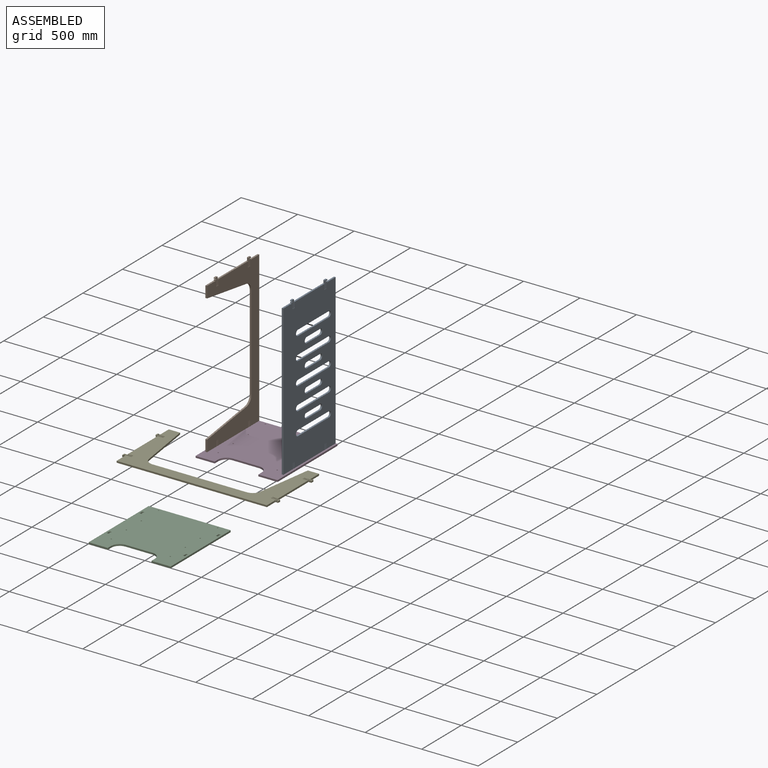
[diagram: assembled view]
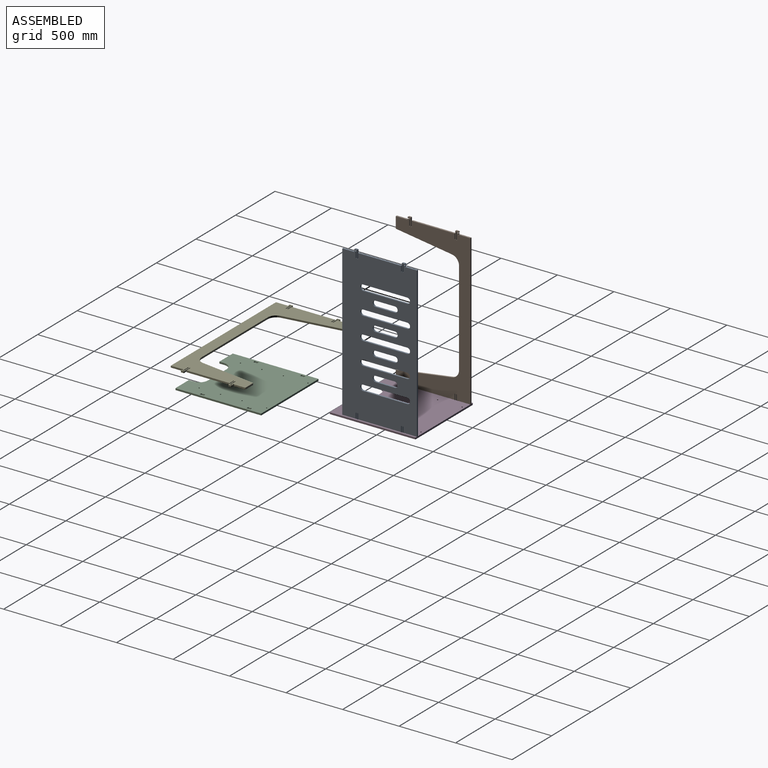
[diagram: assembled view, second angle]
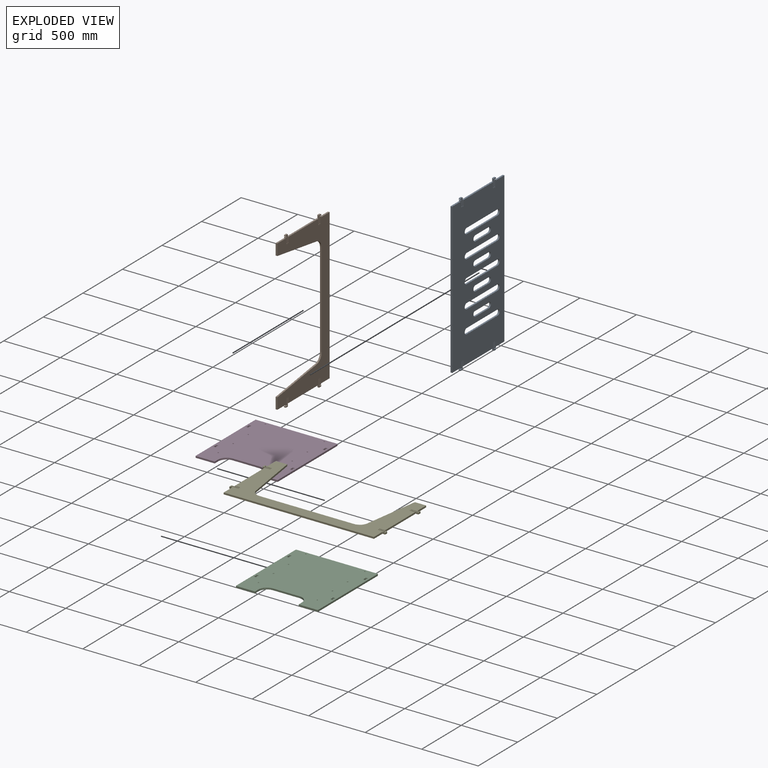
[diagram: exploded view]
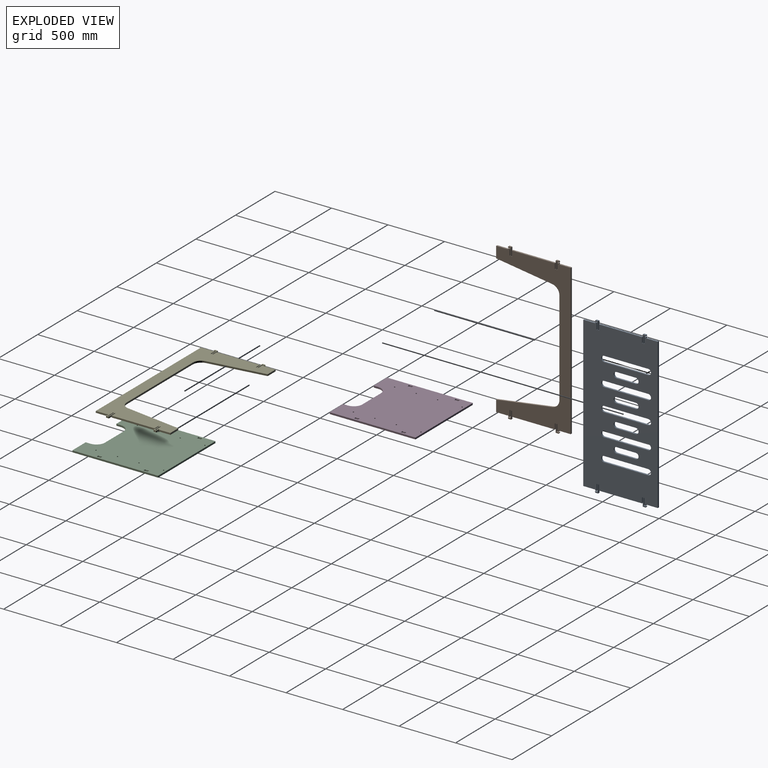
[diagram: exploded view, second angle]
ASSEMBLY  parts=5 mates=2
PART A: 130 faces, bbox 1380.2x660x14.8 mm
  f0: plane 14.8x7.86mm, normal (0,1,0), area 116.3mm2, adj f1,f21,f22,f23
  f1: plane 14.8x10mm, normal (-1,0,0), area 148mm2, adj f0,f2,f22,f23
  f2: cylinder r=3mm len=14.8mm, axis (0,0,-1), area 69.7mm2, adj f1,f3,f22,f23
  f3: plane 51x14.8mm, normal (0,-1,0), area 754.8mm2, adj f2,f4,f22,f23
  f4: cylinder r=3mm len=14.8mm, axis (0,0,-1), area 69.7mm2, adj f3,f5,f22,f23
  f5: plane 14.8x0.5mm, normal (-1,0,0), area 7.4mm2, adj f4,f6,f22,f23
  f6: cylinder r=3mm len=14.8mm, axis (0,0,-1), area 69.7mm2, adj f5,f7,f22,f23
  f7: plane 57.55x14.8mm, normal (0,1,0), area 851.8mm2, adj f6,f8,f22,f23
  f8: cylinder r=3mm len=14.8mm, axis (0,0,-1), area 69mm2, adj f7,f9,f22,f23
  f9: plane 18.55x14.8mm, normal (1,0.02,0), area 274.6mm2, adj f8,f10,f22,f23
  f10: cylinder r=0.5mm len=14.8mm, axis (0,0,-1), area 14.1mm2, adj f9,f11,f22,f23
  f11: plane 14.8x8.36mm, normal (-0.34,0.94,0), area 131.7mm2, adj f10,f12,f22,f23
  f12: cylinder r=2mm len=14.8mm, axis (0,0,-1), area 36.2mm2, adj f11,f13,f22,f23
  f13: plane 22.03x14.8mm, normal (-1,0,0), area 326.1mm2, adj f12,f14,f22,f23
  f14: cylinder r=3mm len=14.8mm, axis (0,0,-1), area 69.7mm2, adj f13,f15,f22,f23
  f15: plane 68.22x14.8mm, normal (0,-1,0), area 1009.7mm2, adj f14,f16,f22,f23
  f16: cylinder r=3mm len=14.8mm, axis (0,0,-1), area 69.7mm2, adj f15,f17,f22,f23
  f17: plane 14.8x0.5mm, normal (-1,0,0), area 7.4mm2, adj f16,f18,f22,f23
  f18: cylinder r=3mm len=14.8mm, axis (0,0,-1), area 69.7mm2, adj f17,f19,f22,f23
  f19: plane 46.14x14.8mm, normal (0,1,0), area 682.9mm2, adj f18,f20,f22,f23
  f20: plane 380x14.8mm, normal (-1,0,0), area 5624mm2, adj f19,f22,f23,f27
  f21: cylinder r=3mm len=14.8mm, axis (0,0,-1), area 139.5mm2, adj f0,f22,f23,f51
  f22: plane 1380.17x660mm, normal (0,0,1), area 727574.9mm2, adj f0,f1,f2,f3,f4,f5,f6,f7
  f23: plane 1380.17x660mm, normal (0,0,-1), area 727574.9mm2, adj f0,f1,f2,f3,f4,f5,f6,f7
  f24: plane 14.8x10mm, normal (-1,0,0), area 148mm2, adj f22,f23,f25,f44
  f25: plane 14.8x7.86mm, normal (0,-1,0), area 116.3mm2, adj f22,f23,f24,f26
  f26: cylinder r=3mm len=14.8mm, axis (0,0,-1), area 139.5mm2, adj f22,f23,f25,f45
  f27: plane 46.14x14.8mm, normal (0,-1,0), area 682.9mm2, adj f20,f22,f23,f28
  f28: cylinder r=3mm len=14.8mm, axis (0,0,-1), area 69.7mm2, adj f22,f23,f27,f29
  f29: plane 14.8x0.5mm, normal (-1,0,0), area 7.4mm2, adj f22,f23,f28,f30
  f30: cylinder r=3mm len=14.8mm, axis (0,0,-1), area 69.7mm2, adj f22,f23,f29,f31
  f31: plane 68.22x14.8mm, normal (0,1,0), area 1009.7mm2, adj f22,f23,f30,f32
  f32: cylinder r=3mm len=14.8mm, axis (0,0,-1), area 69.7mm2, adj f22,f23,f31,f33
  f33: plane 22.03x14.8mm, normal (-1,0,0), area 326.1mm2, adj f22,f23,f32,f34
  f34: cylinder r=2mm len=14.8mm, axis (0,0,-1), area 36.2mm2, adj f22,f23,f33,f35
  f35: plane 14.8x8.36mm, normal (-0.34,-0.94,0), area 131.7mm2, adj f22,f23,f34,f36
  f36: cylinder r=0.5mm len=14.8mm, axis (0,0,-1), area 14.1mm2, adj f22,f23,f35,f37
  f37: plane 18.55x14.8mm, normal (1,-0.02,0), area 274.6mm2, adj f22,f23,f36,f38
  f38: cylinder r=3mm len=14.8mm, axis (0,0,-1), area 69mm2, adj f22,f23,f37,f39
  f39: plane 57.55x14.8mm, normal (0,-1,0), area 851.8mm2, adj f22,f23,f38,f40
  f40: cylinder r=3mm len=14.8mm, axis (0,0,-1), area 69.7mm2, adj f22,f23,f39,f41
  f41: plane 14.8x0.5mm, normal (-1,0,0), area 7.4mm2, adj f22,f23,f40,f42
  f42: cylinder r=3mm len=14.8mm, axis (0,0,-1), area 69.7mm2, adj f22,f23,f41,f43
  f43: plane 51x14.8mm, normal (0,1,0), area 754.8mm2, adj f22,f23,f42,f44
  f44: cylinder r=3mm len=14.8mm, axis (0,0,-1), area 69.7mm2, adj f22,f23,f24,f43
  f45: plane 100x14.8mm, normal (-1,0,0), area 1480mm2, adj f22,f23,f26,f46
  f46: plane 1330x14.8mm, normal (0,-1,0), area 19684mm2, adj f22,f23,f45,f47
  f47: plane 100x14.8mm, normal (1,0,0), area 1480mm2, adj f22,f23,f46,f108
  f48: plane 380x14.8mm, normal (1,0,0), area 5624mm2, adj f22,f23,f107,f112
  f49: plane 100x14.8mm, normal (1,0,0), area 1480mm2, adj f22,f23,f50,f111
  f50: plane 1330x14.8mm, normal (0,1,0), area 19684mm2, adj f22,f23,f49,f51
  f51: plane 100x14.8mm, normal (-1,0,0), area 1480mm2, adj f21,f22,f23,f50
  f52: plane 170.3x14.8mm, normal (-1,0,0), area 2520.5mm2, adj f22,f23,f53,f79
  f53: cylinder r=25.04mm len=50.09mm, axis (0,0,-1), area 1164.5mm2, adj f22,f23,f52,f54
  f54: plane 170.3x14.8mm, normal (1,0,0), area 2520.5mm2, adj f22,f23,f53,f79
  f55: plane 390.69x14.8mm, normal (-1,0,0), area 5782.3mm2, adj f22,f23,f56,f80
  f56: cylinder r=25.04mm len=50.09mm, axis (0,0,-1), area 1164.5mm2, adj f22,f23,f55,f57
  f57: plane 390.69x14.8mm, normal (1,0,0), area 5782.3mm2, adj f22,f23,f56,f80
  f58: plane 170.3x14.8mm, normal (-1,0,0), area 2520.5mm2, adj f22,f23,f59,f81
  f59: cylinder r=25.04mm len=50.09mm, axis (0,0,-1), area 1164.5mm2, adj f22,f23,f58,f60
  f60: plane 170.3x14.8mm, normal (1,0,0), area 2520.5mm2, adj f22,f23,f59,f81
  f61: plane 390.69x14.8mm, normal (-1,0,0), area 5782.3mm2, adj f22,f23,f62,f82
  f62: cylinder r=25.04mm len=50.09mm, axis (0,0,-1), area 1164.5mm2, adj f22,f23,f61,f63
  f63: plane 390.69x14.8mm, normal (1,0,0), area 5782.3mm2, adj f22,f23,f62,f82
  f64: plane 390.69x14.8mm, normal (-1,0,0), area 5782.3mm2, adj f22,f23,f65,f83
  f65: cylinder r=25.04mm len=50.09mm, axis (0,0,-1), area 1164.5mm2, adj f22,f23,f64,f66
  f66: plane 390.69x14.8mm, normal (1,0,0), area 5782.3mm2, adj f22,f23,f65,f83
  f67: plane 170.3x14.8mm, normal (-1,0,0), area 2520.5mm2, adj f22,f23,f68,f84
  f68: cylinder r=25.04mm len=50.09mm, axis (0,0,-1), area 1164.5mm2, adj f22,f23,f67,f69
  f69: plane 170.3x14.8mm, normal (1,0,0), area 2520.5mm2, adj f22,f23,f68,f84
  f70: plane 390.69x14.8mm, normal (-1,0,0), area 5782.3mm2, adj f22,f23,f71,f85
  f71: cylinder r=25.04mm len=50.09mm, axis (0,0,-1), area 1164.5mm2, adj f22,f23,f70,f72
  f72: plane 390.69x14.8mm, normal (1,0,0), area 5782.3mm2, adj f22,f23,f71,f85
  f73: cylinder r=25.04mm len=50.09mm, axis (0,0,-1), area 1164.5mm2, adj f22,f23,f74,f86
  f74: plane 390.69x14.8mm, normal (1,0,0), area 5782.3mm2, adj f22,f23,f73,f75
  f75: cylinder r=25.04mm len=50.09mm, axis (0,0,-1), area 1164.5mm2, adj f22,f23,f74,f86
  f76: cylinder r=25.04mm len=50.09mm, axis (0,0,-1), area 1164.5mm2, adj f22,f23,f77,f87
  f77: plane 170.3x14.8mm, normal (1,0,0), area 2520.5mm2, adj f22,f23,f76,f78
  f78: cylinder r=25.04mm len=50.09mm, axis (0,0,-1), area 1164.5mm2, adj f22,f23,f77,f87
  f79: cylinder r=25.04mm len=50.09mm, axis (0,0,-1), area 1164.5mm2, adj f22,f23,f52,f54
  f80: cylinder r=25.04mm len=50.09mm, axis (0,0,-1), area 1164.5mm2, adj f22,f23,f55,f57
  f81: cylinder r=25.04mm len=50.09mm, axis (0,0,-1), area 1164.5mm2, adj f22,f23,f58,f60
  f82: cylinder r=25.04mm len=50.09mm, axis (0,0,-1), area 1164.5mm2, adj f22,f23,f61,f63
  f83: cylinder r=25.04mm len=50.09mm, axis (0,0,-1), area 1164.5mm2, adj f22,f23,f64,f66
  f84: cylinder r=25.04mm len=50.09mm, axis (0,0,-1), area 1164.5mm2, adj f22,f23,f67,f69
  f85: cylinder r=25.04mm len=50.09mm, axis (0,0,-1), area 1164.5mm2, adj f22,f23,f70,f72
  f86: plane 390.69x14.8mm, normal (-1,0,0), area 5782.3mm2, adj f22,f23,f73,f75
  f87: plane 170.3x14.8mm, normal (-1,0,0), area 2520.5mm2, adj f22,f23,f76,f78
  f88: plane 14.8x7.86mm, normal (0,-1,0), area 116.3mm2, adj f22,f23,f89,f108
  f89: plane 14.8x10mm, normal (1,0,0), area 148mm2, adj f22,f23,f88,f90
  f90: cylinder r=3mm len=14.8mm, axis (0,0,-1), area 69.7mm2, adj f22,f23,f89,f91
  f91: plane 51x14.8mm, normal (0,1,0), area 754.8mm2, adj f22,f23,f90,f92
  f92: cylinder r=3mm len=14.8mm, axis (0,0,-1), area 69.7mm2, adj f22,f23,f91,f93
  f93: plane 14.8x0.5mm, normal (1,0,0), area 7.4mm2, adj f22,f23,f92,f94
  f94: cylinder r=3mm len=14.8mm, axis (0,0,-1), area 69.7mm2, adj f22,f23,f93,f95
  f95: plane 57.55x14.8mm, normal (0,-1,0), area 851.8mm2, adj f22,f23,f94,f96
  f96: cylinder r=3mm len=14.8mm, axis (0,0,-1), area 69mm2, adj f22,f23,f95,f97
  f97: plane 18.55x14.8mm, normal (-1,-0.02,0), area 274.6mm2, adj f22,f23,f96,f98
  f98: cylinder r=0.5mm len=14.8mm, axis (0,0,-1), area 14.1mm2, adj f22,f23,f97,f99
  f99: plane 14.8x8.36mm, normal (0.34,-0.94,0), area 131.7mm2, adj f22,f23,f98,f100
  f100: cylinder r=2mm len=14.8mm, axis (0,0,-1), area 36.2mm2, adj f22,f23,f99,f101
  f101: plane 22.03x14.8mm, normal (1,0,0), area 326.1mm2, adj f22,f23,f100,f102
  f102: cylinder r=3mm len=14.8mm, axis (0,0,-1), area 69.7mm2, adj f22,f23,f101,f103
  f103: plane 68.22x14.8mm, normal (0,1,0), area 1009.7mm2, adj f22,f23,f102,f104
  f104: cylinder r=3mm len=14.8mm, axis (0,0,-1), area 69.7mm2, adj f22,f23,f103,f105
  f105: plane 14.8x0.5mm, normal (1,0,0), area 7.4mm2, adj f22,f23,f104,f106
  f106: cylinder r=3mm len=14.8mm, axis (0,0,-1), area 69.7mm2, adj f22,f23,f105,f107
  f107: plane 46.14x14.8mm, normal (0,-1,0), area 682.9mm2, adj f22,f23,f48,f106
  f108: cylinder r=3mm len=14.8mm, axis (0,0,-1), area 139.5mm2, adj f22,f23,f47,f88
  f109: plane 14.8x10mm, normal (1,0,0), area 148mm2, adj f22,f23,f110,f129
  f110: plane 14.8x7.86mm, normal (0,1,0), area 116.3mm2, adj f22,f23,f109,f111
  f111: cylinder r=3mm len=14.8mm, axis (0,0,-1), area 139.5mm2, adj f22,f23,f49,f110
  f112: plane 46.14x14.8mm, normal (0,1,0), area 682.9mm2, adj f22,f23,f48,f113
  f113: cylinder r=3mm len=14.8mm, axis (0,0,-1), area 69.7mm2, adj f22,f23,f112,f114
  f114: plane 14.8x0.5mm, normal (1,0,0), area 7.4mm2, adj f22,f23,f113,f115
  f115: cylinder r=3mm len=14.8mm, axis (0,0,-1), area 69.7mm2, adj f22,f23,f114,f116
  f116: plane 68.22x14.8mm, normal (0,-1,0), area 1009.7mm2, adj f22,f23,f115,f117
  f117: cylinder r=3mm len=14.8mm, axis (0,0,-1), area 69.7mm2, adj f22,f23,f116,f118
  f118: plane 22.03x14.8mm, normal (1,0,0), area 326.1mm2, adj f22,f23,f117,f119
  f119: cylinder r=2mm len=14.8mm, axis (0,0,-1), area 36.2mm2, adj f22,f23,f118,f120
  f120: plane 14.8x8.36mm, normal (0.34,0.94,0), area 131.7mm2, adj f22,f23,f119,f121
  f121: cylinder r=0.5mm len=14.8mm, axis (0,0,-1), area 14.1mm2, adj f22,f23,f120,f122
  f122: plane 18.55x14.8mm, normal (-1,0.02,0), area 274.6mm2, adj f22,f23,f121,f123
  f123: cylinder r=3mm len=14.8mm, axis (0,0,-1), area 69mm2, adj f22,f23,f122,f124
  f124: plane 57.55x14.8mm, normal (0,1,0), area 851.8mm2, adj f22,f23,f123,f125
  f125: cylinder r=3mm len=14.8mm, axis (0,0,-1), area 69.7mm2, adj f22,f23,f124,f126
  f126: plane 14.8x0.5mm, normal (1,0,0), area 7.4mm2, adj f22,f23,f125,f127
  f127: cylinder r=3mm len=14.8mm, axis (0,0,-1), area 69.7mm2, adj f22,f23,f126,f128
  f128: plane 51x14.8mm, normal (0,-1,0), area 754.8mm2, adj f22,f23,f127,f129
  f129: cylinder r=3mm len=14.8mm, axis (0,0,-1), area 69.7mm2, adj f22,f23,f109,f128
PART B: 101 faces, bbox 1380.2x660x14.8 mm
  f0: plane 14.8x7.86mm, normal (0,1,0), area 116.3mm2, adj f1,f21,f22,f23
  f1: plane 14.8x10mm, normal (-1,0,0), area 148mm2, adj f0,f2,f22,f23
  f2: cylinder r=3mm len=14.8mm, axis (0,0,-1), area 69.7mm2, adj f1,f3,f22,f23
  f3: plane 51x14.8mm, normal (0,-1,0), area 754.8mm2, adj f2,f4,f22,f23
  f4: cylinder r=3mm len=14.8mm, axis (0,0,-1), area 69.7mm2, adj f3,f5,f22,f23
  f5: plane 14.8x0.5mm, normal (-1,0,0), area 7.4mm2, adj f4,f6,f22,f23
  f6: cylinder r=3mm len=14.8mm, axis (0,0,-1), area 69.7mm2, adj f5,f7,f22,f23
  f7: plane 57.55x14.8mm, normal (0,1,0), area 851.8mm2, adj f6,f8,f22,f23
  f8: cylinder r=3mm len=14.8mm, axis (0,0,-1), area 69mm2, adj f7,f9,f22,f23
  f9: plane 18.55x14.8mm, normal (1,0.02,0), area 274.6mm2, adj f8,f10,f22,f23
  f10: cylinder r=0.5mm len=14.8mm, axis (0,0,-1), area 14.1mm2, adj f9,f11,f22,f23
  f11: plane 14.8x8.36mm, normal (-0.34,0.94,0), area 131.7mm2, adj f10,f12,f22,f23
  f12: cylinder r=2mm len=14.8mm, axis (0,0,-1), area 36.2mm2, adj f11,f13,f22,f23
  f13: plane 22.03x14.8mm, normal (-1,0,0), area 326.1mm2, adj f12,f14,f22,f23
  f14: cylinder r=3mm len=14.8mm, axis (0,0,-1), area 69.7mm2, adj f13,f15,f22,f23
  f15: plane 68.22x14.8mm, normal (0,-1,0), area 1009.7mm2, adj f14,f16,f22,f23
  f16: cylinder r=3mm len=14.8mm, axis (0,0,-1), area 69.7mm2, adj f15,f17,f22,f23
  f17: plane 14.8x0.5mm, normal (-1,0,0), area 7.4mm2, adj f16,f18,f22,f23
  f18: cylinder r=3mm len=14.8mm, axis (0,0,-1), area 69.7mm2, adj f17,f19,f22,f23
  f19: plane 46.14x14.8mm, normal (0,1,0), area 682.9mm2, adj f18,f20,f22,f23
  f20: plane 380x14.8mm, normal (-1,0,0), area 5624mm2, adj f19,f22,f23,f27
  f21: cylinder r=3mm len=14.8mm, axis (0,0,-1), area 139.5mm2, adj f0,f22,f23,f54
  f22: plane 1380.17x660mm, normal (0,0,1), area 292102.5mm2, adj f0,f1,f2,f3,f4,f5,f6,f7
  f23: plane 1380.17x660mm, normal (0,0,-1), area 292102.5mm2, adj f0,f1,f2,f3,f4,f5,f6,f7
  f24: plane 14.8x10mm, normal (-1,0,0), area 148mm2, adj f22,f23,f25,f44
  f25: plane 14.8x7.86mm, normal (0,-1,0), area 116.3mm2, adj f22,f23,f24,f26
  f26: cylinder r=3mm len=14.8mm, axis (0,0,-1), area 139.5mm2, adj f22,f23,f25,f55
  f27: plane 46.14x14.8mm, normal (0,-1,0), area 682.9mm2, adj f20,f22,f23,f28
  f28: cylinder r=3mm len=14.8mm, axis (0,0,-1), area 69.7mm2, adj f22,f23,f27,f29
  f29: plane 14.8x0.5mm, normal (-1,0,0), area 7.4mm2, adj f22,f23,f28,f30
  f30: cylinder r=3mm len=14.8mm, axis (0,0,-1), area 69.7mm2, adj f22,f23,f29,f31
  f31: plane 68.22x14.8mm, normal (0,1,0), area 1009.7mm2, adj f22,f23,f30,f32
  f32: cylinder r=3mm len=14.8mm, axis (0,0,-1), area 69.7mm2, adj f22,f23,f31,f33
  f33: plane 22.03x14.8mm, normal (-1,0,0), area 326.1mm2, adj f22,f23,f32,f34
  f34: cylinder r=2mm len=14.8mm, axis (0,0,-1), area 36.2mm2, adj f22,f23,f33,f35
  f35: plane 14.8x8.36mm, normal (-0.34,-0.94,0), area 131.7mm2, adj f22,f23,f34,f36
  f36: cylinder r=0.5mm len=14.8mm, axis (0,0,-1), area 14.1mm2, adj f22,f23,f35,f37
  f37: plane 18.55x14.8mm, normal (1,-0.02,0), area 274.6mm2, adj f22,f23,f36,f38
  f38: cylinder r=3mm len=14.8mm, axis (0,0,-1), area 69mm2, adj f22,f23,f37,f39
  f39: plane 57.55x14.8mm, normal (0,-1,0), area 851.8mm2, adj f22,f23,f38,f40
  f40: cylinder r=3mm len=14.8mm, axis (0,0,-1), area 69.7mm2, adj f22,f23,f39,f41
  f41: plane 14.8x0.5mm, normal (-1,0,0), area 7.4mm2, adj f22,f23,f40,f42
  f42: cylinder r=3mm len=14.8mm, axis (0,0,-1), area 69.7mm2, adj f22,f23,f41,f43
  f43: plane 51x14.8mm, normal (0,1,0), area 754.8mm2, adj f22,f23,f42,f44
  f44: cylinder r=3mm len=14.8mm, axis (0,0,-1), area 69.7mm2, adj f22,f23,f24,f43
  f45: plane 100x14.8mm, normal (1,0,0), area 1480mm2, adj f22,f23,f46,f82
  f46: plane 100x14.8mm, normal (0,1,0), area 1480mm2, adj f22,f23,f45,f47
  f47: plane 495.87x72.61mm, normal (-0.99,0.14,0), area 7417.1mm2, adj f22,f23,f46,f48
  f48: cylinder r=75mm len=74.21mm, axis (0,0,-1), area 1582.2mm2, adj f22,f23,f47,f49
  f49: plane 14.8x6mm, normal (0,1,0), area 88.8mm2, adj f22,f23,f48,f50
  f50: plane 830.36x14.8mm, normal (0,1,0), area 12289.4mm2, adj f22,f23,f49,f51
  f51: cylinder r=75mm len=74.21mm, axis (0,0,-1), area 1582.2mm2, adj f22,f23,f50,f52
  f52: plane 495.87x72.61mm, normal (0.99,0.14,0), area 7417.1mm2, adj f22,f23,f51,f53
  f53: plane 100x14.8mm, normal (0,1,0), area 1480mm2, adj f22,f23,f52,f54
  f54: plane 100x14.8mm, normal (-1,0,0), area 1480mm2, adj f21,f22,f23,f53
  f55: plane 100x14.8mm, normal (-1,0,0), area 1480mm2, adj f22,f23,f26,f56
  f56: plane 1330x14.8mm, normal (0,-1,0), area 19684mm2, adj f22,f23,f55,f57
  f57: plane 100x14.8mm, normal (1,0,0), area 1480mm2, adj f22,f23,f56,f79
  f58: plane 380x14.8mm, normal (1,0,0), area 5624mm2, adj f22,f23,f78,f83
  f59: plane 14.8x7.86mm, normal (0,-1,0), area 116.3mm2, adj f22,f23,f60,f79
  f60: plane 14.8x10mm, normal (1,0,0), area 148mm2, adj f22,f23,f59,f61
  f61: cylinder r=3mm len=14.8mm, axis (0,0,-1), area 69.7mm2, adj f22,f23,f60,f62
  f62: plane 51x14.8mm, normal (0,1,0), area 754.8mm2, adj f22,f23,f61,f63
  f63: cylinder r=3mm len=14.8mm, axis (0,0,-1), area 69.7mm2, adj f22,f23,f62,f64
  f64: plane 14.8x0.5mm, normal (1,0,0), area 7.4mm2, adj f22,f23,f63,f65
  f65: cylinder r=3mm len=14.8mm, axis (0,0,-1), area 69.7mm2, adj f22,f23,f64,f66
  f66: plane 57.55x14.8mm, normal (0,-1,0), area 851.8mm2, adj f22,f23,f65,f67
  f67: cylinder r=3mm len=14.8mm, axis (0,0,-1), area 69mm2, adj f22,f23,f66,f68
  f68: plane 18.55x14.8mm, normal (-1,-0.02,0), area 274.6mm2, adj f22,f23,f67,f69
  f69: cylinder r=0.5mm len=14.8mm, axis (0,0,-1), area 14.1mm2, adj f22,f23,f68,f70
  f70: plane 14.8x8.36mm, normal (0.34,-0.94,0), area 131.7mm2, adj f22,f23,f69,f71
  f71: cylinder r=2mm len=14.8mm, axis (0,0,-1), area 36.2mm2, adj f22,f23,f70,f72
  f72: plane 22.03x14.8mm, normal (1,0,0), area 326.1mm2, adj f22,f23,f71,f73
  f73: cylinder r=3mm len=14.8mm, axis (0,0,-1), area 69.7mm2, adj f22,f23,f72,f74
  f74: plane 68.22x14.8mm, normal (0,1,0), area 1009.7mm2, adj f22,f23,f73,f75
  f75: cylinder r=3mm len=14.8mm, axis (0,0,-1), area 69.7mm2, adj f22,f23,f74,f76
  f76: plane 14.8x0.5mm, normal (1,0,0), area 7.4mm2, adj f22,f23,f75,f77
  f77: cylinder r=3mm len=14.8mm, axis (0,0,-1), area 69.7mm2, adj f22,f23,f76,f78
  f78: plane 46.14x14.8mm, normal (0,-1,0), area 682.9mm2, adj f22,f23,f58,f77
  f79: cylinder r=3mm len=14.8mm, axis (0,0,-1), area 139.5mm2, adj f22,f23,f57,f59
  f80: plane 14.8x10mm, normal (1,0,0), area 148mm2, adj f22,f23,f81,f100
  f81: plane 14.8x7.86mm, normal (0,1,0), area 116.3mm2, adj f22,f23,f80,f82
  f82: cylinder r=3mm len=14.8mm, axis (0,0,-1), area 139.5mm2, adj f22,f23,f45,f81
  f83: plane 46.14x14.8mm, normal (0,1,0), area 682.9mm2, adj f22,f23,f58,f84
  f84: cylinder r=3mm len=14.8mm, axis (0,0,-1), area 69.7mm2, adj f22,f23,f83,f85
  f85: plane 14.8x0.5mm, normal (1,0,0), area 7.4mm2, adj f22,f23,f84,f86
  f86: cylinder r=3mm len=14.8mm, axis (0,0,-1), area 69.7mm2, adj f22,f23,f85,f87
  f87: plane 68.22x14.8mm, normal (0,-1,0), area 1009.7mm2, adj f22,f23,f86,f88
  f88: cylinder r=3mm len=14.8mm, axis (0,0,-1), area 69.7mm2, adj f22,f23,f87,f89
  f89: plane 22.03x14.8mm, normal (1,0,0), area 326.1mm2, adj f22,f23,f88,f90
  f90: cylinder r=2mm len=14.8mm, axis (0,0,-1), area 36.2mm2, adj f22,f23,f89,f91
  f91: plane 14.8x8.36mm, normal (0.34,0.94,0), area 131.7mm2, adj f22,f23,f90,f92
  f92: cylinder r=0.5mm len=14.8mm, axis (0,0,-1), area 14.1mm2, adj f22,f23,f91,f93
  f93: plane 18.55x14.8mm, normal (-1,0.02,0), area 274.6mm2, adj f22,f23,f92,f94
  f94: cylinder r=3mm len=14.8mm, axis (0,0,-1), area 69mm2, adj f22,f23,f93,f95
  f95: plane 57.55x14.8mm, normal (0,1,0), area 851.8mm2, adj f22,f23,f94,f96
  f96: cylinder r=3mm len=14.8mm, axis (0,0,-1), area 69.7mm2, adj f22,f23,f95,f97
  f97: plane 14.8x0.5mm, normal (1,0,0), area 7.4mm2, adj f22,f23,f96,f98
  f98: cylinder r=3mm len=14.8mm, axis (0,0,-1), area 69.7mm2, adj f22,f23,f97,f99
  f99: plane 51x14.8mm, normal (0,-1,0), area 754.8mm2, adj f22,f23,f98,f100
  f100: cylinder r=3mm len=14.8mm, axis (0,0,-1), area 69.7mm2, adj f22,f23,f80,f99
PART C: 58 faces, bbox 726x759.9x14.8 mm
  f0: cylinder r=2mm len=14.8mm, axis (0,0,-1), area 46.5mm2, adj f1,f15,f24,f25
  f1: plane 166x14.8mm, normal (0,-1,0), area 2456.8mm2, adj f0,f2,f24,f25
  f2: cylinder r=2mm len=14.8mm, axis (0,0,-1), area 46.5mm2, adj f1,f3,f24,f25
  f3: plane 41x14.8mm, normal (1,0,0), area 606.8mm2, adj f2,f4,f24,f25
  f4: cylinder r=75mm len=75mm, axis (0,0,-1), area 1743.6mm2, adj f3,f5,f24,f25
  f5: plane 236x14.8mm, normal (0,-1,0), area 3492.8mm2, adj f4,f6,f24,f25
  f6: cylinder r=75mm len=75mm, axis (0,0,-1), area 1743.6mm2, adj f5,f7,f24,f25
  f7: plane 41x14.8mm, normal (-1,0,0), area 606.8mm2, adj f6,f8,f24,f25
  f8: cylinder r=2mm len=14.8mm, axis (0,0,-1), area 46.5mm2, adj f7,f9,f24,f25
  f9: plane 166x14.8mm, normal (0,-1,0), area 2456.8mm2, adj f8,f10,f24,f25
  f10: cylinder r=2mm len=14.8mm, axis (0,0,-1), area 46.5mm2, adj f9,f11,f24,f25
  f11: plane 756x14.8mm, normal (1,0,0), area 11188.8mm2, adj f10,f12,f24,f25
  f12: cylinder r=2mm len=14.8mm, axis (0,0,-1), area 37.1mm2, adj f11,f13,f24,f25
  f13: plane 723.25x14.8mm, normal (0,1,0), area 10704.1mm2, adj f12,f14,f24,f25
  f14: cylinder r=2mm len=14.8mm, axis (0,0,-1), area 37.1mm2, adj f13,f15,f24,f25
  f15: plane 756x14.8mm, normal (-1,0,0), area 11188.8mm2, adj f0,f14,f24,f25
  f16: cylinder r=5.5mm len=14.8mm, axis (0,0,-1), area 511.5mm2, adj f24,f25
  f17: cylinder r=5.5mm len=14.8mm, axis (0,0,-1), area 511.5mm2, adj f24,f25
  f18: cylinder r=5.5mm len=14.8mm, axis (0,0,-1), area 511.5mm2, adj f24,f25
  f19: cylinder r=5.5mm len=14.8mm, axis (0,0,-1), area 511.5mm2, adj f24,f25
  f20: cylinder r=5.5mm len=14.8mm, axis (0,0,-1), area 511.5mm2, adj f24,f25
  f21: cylinder r=5.5mm len=14.8mm, axis (0,0,-1), area 511.5mm2, adj f24,f25
  f22: cylinder r=5.5mm len=14.8mm, axis (0,0,-1), area 511.5mm2, adj f24,f25
  f23: cylinder r=5.5mm len=14.8mm, axis (0,0,-1), area 511.5mm2, adj f24,f25
  f24: plane 759.9x726mm, normal (0,0,1), area 505549.6mm2, adj f0,f1,f2,f3,f4,f5,f6,f7
  f25: plane 759.9x726mm, normal (0,0,-1), area 505549.6mm2, adj f0,f1,f2,f3,f4,f5,f6,f7
  f26: cylinder r=3mm len=14.8mm, axis (0,0,-1), area 139.5mm2, adj f24,f25,f27,f33
  f27: plane 22x14.8mm, normal (1,0,0), area 325.6mm2, adj f24,f25,f26,f28
  f28: cylinder r=3mm len=14.8mm, axis (0,0,-1), area 139.5mm2, adj f24,f25,f27,f29
  f29: plane 14.8x14.8mm, normal (0,-1,0), area 219mm2, adj f24,f25,f28,f30
  f30: cylinder r=3mm len=14.8mm, axis (0,0,-1), area 139.5mm2, adj f24,f25,f29,f31
  f31: plane 22x14.8mm, normal (-1,0,0), area 325.6mm2, adj f24,f25,f30,f32
  f32: cylinder r=3mm len=14.8mm, axis (0,0,-1), area 139.5mm2, adj f24,f25,f31,f33
  f33: plane 14.8x14.8mm, normal (0,1,0), area 219mm2, adj f24,f25,f26,f32
  f34: cylinder r=3mm len=14.8mm, axis (0,0,-1), area 139.5mm2, adj f24,f25,f35,f41
  f35: plane 22x14.8mm, normal (1,0,0), area 325.6mm2, adj f24,f25,f34,f36
  f36: cylinder r=3mm len=14.8mm, axis (0,0,-1), area 139.5mm2, adj f24,f25,f35,f37
  f37: plane 14.8x14.8mm, normal (0,-1,0), area 219mm2, adj f24,f25,f36,f38
  f38: cylinder r=3mm len=14.8mm, axis (0,0,-1), area 139.5mm2, adj f24,f25,f37,f39
  f39: plane 22x14.8mm, normal (-1,0,0), area 325.6mm2, adj f24,f25,f38,f40
  f40: cylinder r=3mm len=14.8mm, axis (0,0,-1), area 139.5mm2, adj f24,f25,f39,f41
  f41: plane 14.8x14.8mm, normal (0,1,0), area 219mm2, adj f24,f25,f34,f40
  f42: cylinder r=3mm len=14.8mm, axis (0,0,-1), area 139.5mm2, adj f24,f25,f43,f49
  f43: plane 22x14.8mm, normal (1,0,0), area 325.6mm2, adj f24,f25,f42,f44
  f44: cylinder r=3mm len=14.8mm, axis (0,0,-1), area 139.5mm2, adj f24,f25,f43,f45
  f45: plane 14.8x14.8mm, normal (0,-1,0), area 219mm2, adj f24,f25,f44,f46
  f46: cylinder r=3mm len=14.8mm, axis (0,0,-1), area 139.5mm2, adj f24,f25,f45,f47
  f47: plane 22x14.8mm, normal (-1,0,0), area 325.6mm2, adj f24,f25,f46,f48
  f48: cylinder r=3mm len=14.8mm, axis (0,0,-1), area 139.5mm2, adj f24,f25,f47,f49
  f49: plane 14.8x14.8mm, normal (0,1,0), area 219mm2, adj f24,f25,f42,f48
  f50: cylinder r=3mm len=14.8mm, axis (0,0,-1), area 139.5mm2, adj f24,f25,f51,f57
  f51: plane 22x14.8mm, normal (1,0,0), area 325.6mm2, adj f24,f25,f50,f52
  f52: cylinder r=3mm len=14.8mm, axis (0,0,-1), area 139.5mm2, adj f24,f25,f51,f53
  f53: plane 14.8x14.8mm, normal (0,-1,0), area 219mm2, adj f24,f25,f52,f54
  f54: cylinder r=3mm len=14.8mm, axis (0,0,-1), area 139.5mm2, adj f24,f25,f53,f55
  f55: plane 22x14.8mm, normal (-1,0,0), area 325.6mm2, adj f24,f25,f54,f56
  f56: cylinder r=3mm len=14.8mm, axis (0,0,-1), area 139.5mm2, adj f24,f25,f55,f57
  f57: plane 14.8x14.8mm, normal (0,1,0), area 219mm2, adj f24,f25,f50,f56
PART D: same geometry as C
PART E: same geometry as B
PLACE A rot(axis=(0,-1,0),90deg) t=(-739.56,775.14,-431.37)mm
PLACE B rot(axis=(0.71,0,-0.71),180deg) t=(-1415.56,643.45,-495.59)mm
PLACE C t=(-1056.04,-716.42,-1312.5)mm
PLACE D t=(-1062.96,644.3,-1143.28)mm
PLACE E t=(-757.5,-312.48,-807.31)mm
MATE fastened B.f59 <-> D.f37  axis (0,1,0) through (-1422.96,933.3,-1128.48)mm
MATE fastened A.f0 <-> D.f45  axis (0,1,0) through (-746.96,933.3,-1128.48)mm
